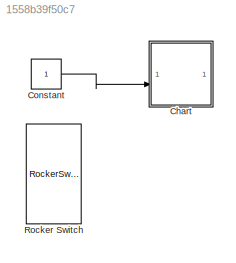
MODEL slx_1558b39f50c7
KIND model
CONFIG AbsTol = auto
CONFIG EnableMultiTasking = off
CONFIG FixedStep = auto
CONFIG MaxStep = auto
CONFIG MinStep = auto
CONFIG RelTol = 1e-3
CONFIG SampleTimeConstraint = Unconstrained
CONFIG SolverName = VariableStepAuto
CONFIG StartTime = 0.0
CONFIG StopTime = inf
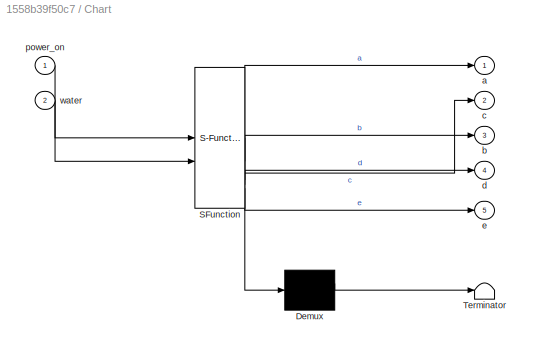
BLOCK [SubSystem] Chart
  ErrorFcn = Stateflow.Translate.translate
  PermitHierarchicalResolution = ExplicitOnly
  SFBlockType = Chart
  TreatAsAtomicUnit = on
BLOCK [Demux] Chart/ Demux 
  Outputs = 1
BLOCK [S-Function] Chart/ SFunction 
  EnableBusSupport = on
  FunctionName = sf_sfun
  PortCounts = [2 6]
  SFcnIsStateOwnerBlock = off
  SFunctionDeploymentMode = off
  Tag = Stateflow S-Function 3
BLOCK [Terminator] Chart/ Terminator 
BLOCK [Outport] Chart/a
BLOCK [Outport] Chart/b
  Port = 3
BLOCK [Outport] Chart/c
  Port = 2
BLOCK [Outport] Chart/d
  Port = 4
BLOCK [Outport] Chart/e
  Port = 5
BLOCK [Inport] Chart/power_on
BLOCK [Inport] Chart/water
  Port = 2
BLOCK [Constant] Constant
BLOCK [RockerSwitchBlock] Rocker Switch
LINE Constant:1 -> Chart:2
CHART Chart states=5 transitions=5
  STATE_LABEL 'fill\n\nentry:\na=1;'
  STATE_LABEL 'wash\n\nentry:\na=0;\nduring:\nb=1;'
  STATE_LABEL 'rinse\n\nentry:\nb=0;\nduring:\nc=1;'
  STATE_LABEL 'spin\n\nentry:\nc=0;\nduring:\nd=1;'
  STATE_LABEL 'done\n\nentry:\nd=0;\nduring:\ne=1;'
CHART  states=0 transitions=0
